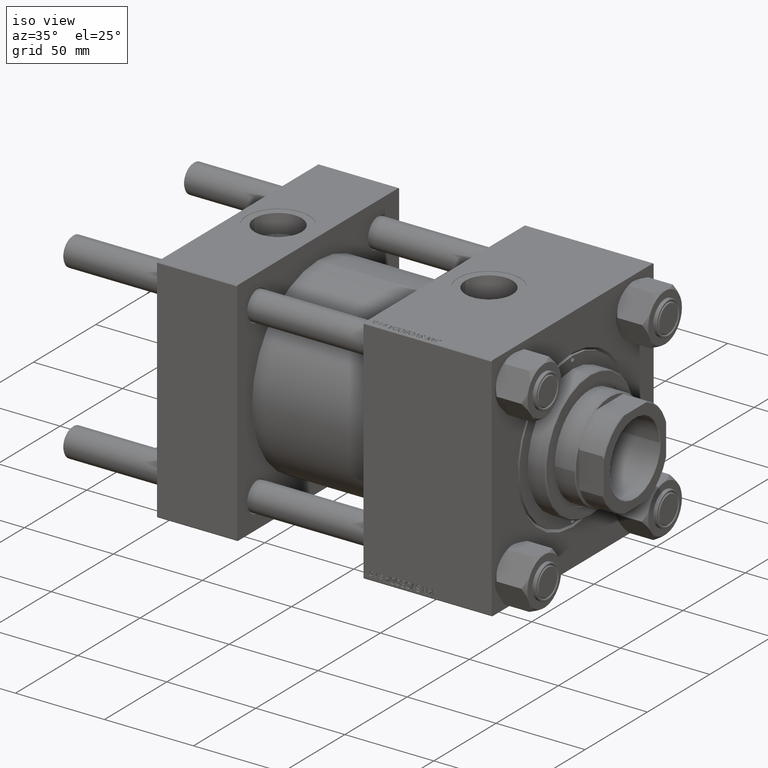
[diagram: clean part render]
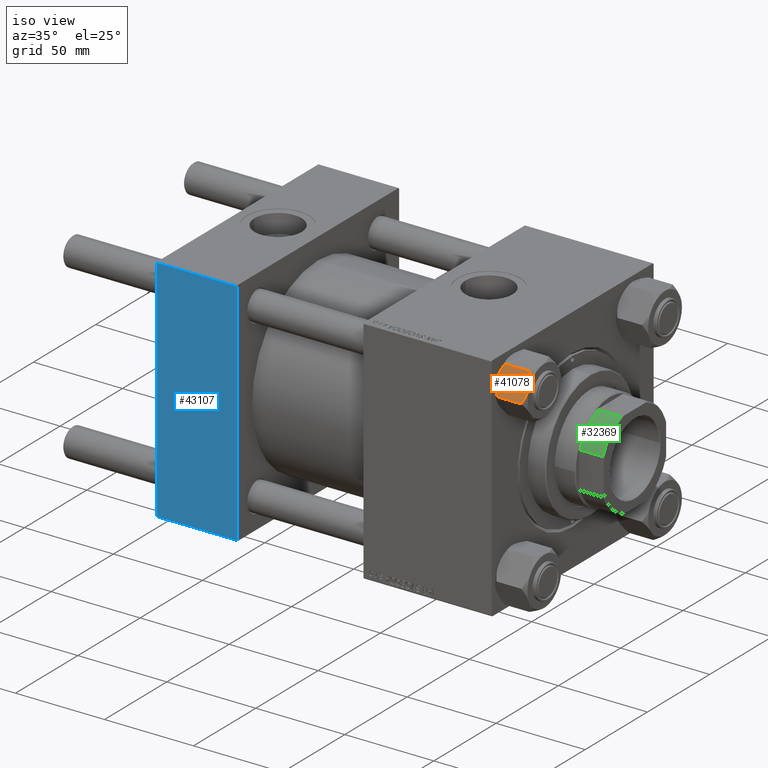
[diagram: same view with three faces highlighted in distinct colors, each labeled with its STEP entity id]
A machine part, iso view with three faces highlighted in distinct colors.
Their STEP definitions:

[orange] entity #41078 — the highlighted planar face has unit normal (-0, 0.9104, -0.4137).
#724 = CARTESIAN_POINT ( 'NONE',  ( -4.506943796211480446E-15, 13.52731680711293905, 0.000000000000000000 ) ) ;
#861 = ORIENTED_EDGE ( 'NONE', *, *, #16307, .F. ) ;
#1007 = VECTOR ( 'NONE', #46820, 1000.000000000000000 ) ;
#1918 = CARTESIAN_POINT ( 'NONE',  ( -7.810000000000002274, 13.52731680711293549, -16.00000000000000000 ) ) ;
#2775 = CARTESIAN_POINT ( 'NONE',  ( 5.184073258379390481, 13.52731680711294082, -17.05185620934991064 ) ) ;
#3809 = ORIENTED_EDGE ( 'NONE', *, *, #49305, .F. ) ;
#4373 = EDGE_CURVE ( 'NONE', #48094, #45149, #8052, .T. ) ;
#5595 = CARTESIAN_POINT ( 'NONE',  ( 0.6693083573771140271, 13.52731680711293905, -17.98750666918891739 ) ) ;
#5730 = CARTESIAN_POINT ( 'NONE',  ( -7.030888348548057998, 13.52731680711293727, -16.29066211644969897 ) ) ;
#5844 = CARTESIAN_POINT ( 'NONE',  ( 4.557734399832405359, 13.52731680711293905, -17.26585298258848411 ) ) ;
#6463 = ORIENTED_EDGE ( 'NONE', *, *, #41936, .F. ) ;
#6665 = DIRECTION ( 'NONE',  ( -0.000000000000000000, -0.000000000000000000, 1.000000000000000000 ) ) ;
#8052 = LINE ( 'NONE', #24106, #1007 ) ;
#8248 = CARTESIAN_POINT ( 'NONE',  ( 7.809999999999994280, 13.52731680711294082, -16.00000000000000000 ) ) ;
#9209 = LINE ( 'NONE', #24768, #16541 ) ;
#9407 = VERTEX_POINT ( 'NONE', #30693 ) ;
#9640 = DIRECTION ( 'NONE',  ( 1.000000000000000000, 3.331735229148797044E-16, 0.000000000000000000 ) ) ;
#9854 = VERTEX_POINT ( 'NONE', #13511 ) ;
#9893 = FACE_OUTER_BOUND ( 'NONE', #38429, .T. ) ;
#10231 = LINE ( 'NONE', #45176, #41820 ) ;
#10459 = VERTEX_POINT ( 'NONE', #33250 ) ;
#10983 = DIRECTION ( 'NONE',  ( -0.000000000000000000, -0.000000000000000000, 1.000000000000000000 ) ) ;
#11621 = CARTESIAN_POINT ( 'NONE',  ( 7.622943475354630571, 13.52731680711294082, -16.00000000000000000 ) ) ;
#11777 = CARTESIAN_POINT ( 'NONE',  ( -7.810000000000002274, 13.52731680711293549, -16.00000000000000000 ) ) ;
#11805 = B_SPLINE_CURVE_WITH_KNOTS ( 'NONE', 3,
 ( #15865, #26842, #46993, #26337, #35016, #46481, #46224, #38834 ),
 .UNSPECIFIED., .F., .F.,
 ( 4, 2, 2, 4 ),
 ( 0.01980594295952729789, 0.02179054093496183772, 0.02377513891039637756, 0.02774433486126545376 ),
 .UNSPECIFIED. ) ;
#11901 = EDGE_CURVE ( 'NONE', #45149, #48420, #34209, .T. ) ;
#13491 = EDGE_CURVE ( 'NONE', #9854, #23813, #11805, .T. ) ;
#13511 = CARTESIAN_POINT ( 'NONE',  ( 7.622943475354630571, 13.52731680711294082, -2.000000000000000000 ) ) ;
#13702 = CARTESIAN_POINT ( 'NONE',  ( -4.557734399832410688, 13.52731680711293549, -0.7341470174115168890 ) ) ;
#14363 = ORIENTED_EDGE ( 'NONE', *, *, #4373, .F. ) ;
#14864 = EDGE_CURVE ( 'NONE', #9407, #48094, #24982, .T. ) ;
#15286 = VERTEX_POINT ( 'NONE', #25603 ) ;
#15588 = ORIENTED_EDGE ( 'NONE', *, *, #25076, .F. ) ;
#15670 = ORIENTED_EDGE ( 'NONE', *, *, #43267, .T. ) ;
#15865 = CARTESIAN_POINT ( 'NONE',  ( 7.622943475354630571, 13.52731680711294082, -2.000000000000000000 ) ) ;
#16307 = EDGE_CURVE ( 'NONE', #23813, #19358, #29221, .T. ) ;
#16541 = VECTOR ( 'NONE', #33194, 1000.000000000000000 ) ;
#16946 = CARTESIAN_POINT ( 'NONE',  ( -5.189513245496327976, 13.52731680711293905, -17.04988915682674389 ) ) ;
#16960 = DIRECTION ( 'NONE',  ( 1.000000000000000000, 3.331735229148797044E-16, 0.000000000000000000 ) ) ;
#17810 = CARTESIAN_POINT ( 'NONE',  ( 1.663410456966166295, 13.52731680711293905, -17.90195050864300086 ) ) ;
#18019 = CARTESIAN_POINT ( 'NONE',  ( -5.184073258379398474, 13.52731680711293372, -0.9481437906500842505 ) ) ;
#19041 = VERTEX_POINT ( 'NONE', #11777 ) ;
#19358 = VERTEX_POINT ( 'NONE', #40012 ) ;
#20424 = ORIENTED_EDGE ( 'NONE', *, *, #14864, .F. ) ;
#20593 = CARTESIAN_POINT ( 'NONE',  ( -0.6693083573771245742, 13.52731680711293727, -0.01249333081108506931 ) ) ;
#20777 = CARTESIAN_POINT ( 'NONE',  ( -6.427364677720469821, 13.52731680711293549, -16.56149306284486400 ) ) ;
#20852 = CARTESIAN_POINT ( 'NONE',  ( -1.333889873825136130, 13.52731680711293549, -0.06156641003439738274 ) ) ;
#21028 = CARTESIAN_POINT ( 'NONE',  ( -1.335584685993417065, 13.52731680711293549, -17.99999999999999289 ) ) ;
#21098 = CARTESIAN_POINT ( 'NONE',  ( -1.663410456966178064, 13.52731680711294082, -0.09804949135699474183 ) ) ;
#21874 = CARTESIAN_POINT ( 'NONE',  ( -7.810000000000002274, 13.52731680711293549, -18.00000000000000000 ) ) ;
#21923 = VECTOR ( 'NONE', #26988, 1000.000000000000000 ) ;
#22105 = CARTESIAN_POINT ( 'NONE',  ( -7.030203932307578896, 13.52731680711293727, -1.709001877891394239 ) ) ;
#22147 = CARTESIAN_POINT ( 'NONE',  ( -4.506943796211480446E-15, 13.52731680711293905, -18.00000000000000000 ) ) ;
#23813 = VERTEX_POINT ( 'NONE', #28770 ) ;
#24106 = CARTESIAN_POINT ( 'NONE',  ( -7.810000000000002274, 13.52731680711293549, -16.00000000000000000 ) ) ;
#24768 = CARTESIAN_POINT ( 'NONE',  ( -7.810000000000002274, 13.52731680711293549, -1.999999999999998224 ) ) ;
#24855 = CARTESIAN_POINT ( 'NONE',  ( -4.553769687922305742, 13.52731680711293727, -17.26727080048547691 ) ) ;
#24982 = B_SPLINE_CURVE_WITH_KNOTS ( 'NONE', 3,
 ( #22147, #32880, #5595, #37214, #17810, #37706, #29053, #5844, #2775, #48434, #33387, #48937 ),
 .UNSPECIFIED., .F., .F.,
 ( 4, 2, 2, 2, 2, 4 ),
 ( 0.02774433486126545029, 0.02873404020403548531, 0.02972374554680552380, 0.03170315623234559732, 0.03368256691788566737, 0.03566197760342574435 ),
 .UNSPECIFIED. ) ;
#25076 = EDGE_CURVE ( 'NONE', #48420, #9854, #43306, .T. ) ;
#25570 = ORIENTED_EDGE ( 'NONE', *, *, #13491, .F. ) ;
#25603 = CARTESIAN_POINT ( 'NONE',  ( -7.622943475354639453, 13.52731680711293727, -16.00000000000000000 ) ) ;
#25709 = PLANE ( 'NONE',  #44178 ) ;
#26219 = EDGE_CURVE ( 'NONE', #19041, #15286, #32785, .T. ) ;
#26337 = CARTESIAN_POINT ( 'NONE',  ( 5.189513245496318206, 13.52731680711294260, -0.9501108431732598891 ) ) ;
#26549 = CARTESIAN_POINT ( 'NONE',  ( 7.809999999999995168, 13.52731680711294082, -18.00000000000000000 ) ) ;
#26842 = CARTESIAN_POINT ( 'NONE',  ( 7.030888348548049116, 13.52731680711294260, -1.709337883550296810 ) ) ;
#26988 = DIRECTION ( 'NONE',  ( -1.000000000000000000, -3.331735229148797044E-16, 0.000000000000000000 ) ) ;
#28770 = CARTESIAN_POINT ( 'NONE',  ( -4.506943796211480446E-15, 13.52731680711293905, 0.000000000000000000 ) ) ;
#29053 = CARTESIAN_POINT ( 'NONE',  ( 3.287826776903146619, 13.52731680711294082, -17.61954155462465366 ) ) ;
#29221 = B_SPLINE_CURVE_WITH_KNOTS ( 'NONE', 3,
 ( #724, #47641, #20593, #20852, #21098, #36656, #47145, #13702, #18019, #37416, #22105, #40742 ),
 .UNSPECIFIED., .F., .F.,
 ( 4, 2, 2, 2, 2, 4 ),
 ( 0.02774433486126545376, 0.02873404020403548878, 0.02972374554680552727, 0.03170315623234559732, 0.03368256691788567431, 0.03566197760342574435 ),
 .UNSPECIFIED. ) ;
#30163 = ORIENTED_EDGE ( 'NONE', *, *, #11901, .F. ) ;
#30693 = CARTESIAN_POINT ( 'NONE',  ( -4.506943796211480446E-15, 13.52731680711293905, -18.00000000000000000 ) ) ;
#32785 = LINE ( 'NONE', #1918, #37435 ) ;
#32880 = CARTESIAN_POINT ( 'NONE',  ( 0.3330234424833778406, 13.52731680711293905, -17.99999999999999645 ) ) ;
#33194 = DIRECTION ( 'NONE',  ( -1.000000000000000000, -3.331735229148797044E-16, 0.000000000000000000 ) ) ;
#33250 = CARTESIAN_POINT ( 'NONE',  ( -7.810000000000002274, 13.52731680711293549, -1.999999999999998224 ) ) ;
#33387 = CARTESIAN_POINT ( 'NONE',  ( 7.030203932307570902, 13.52731680711294260, -16.29099812210859710 ) ) ;
#34209 = LINE ( 'NONE', #26549, #47720 ) ;
#35016 = CARTESIAN_POINT ( 'NONE',  ( 4.553769687922292420, 13.52731680711293905, -0.7327291995145180925 ) ) ;
#35304 = CARTESIAN_POINT ( 'NONE',  ( 7.809999999999994280, 13.52731680711294082, -1.999999999999998224 ) ) ;
#36341 = CARTESIAN_POINT ( 'NONE',  ( -7.622943475354639453, 13.52731680711293727, -16.00000000000000000 ) ) ;
#36586 = CARTESIAN_POINT ( 'NONE',  ( -4.506943796211480446E-15, 13.52731680711293905, -18.00000000000000000 ) ) ;
#36656 = CARTESIAN_POINT ( 'NONE',  ( -2.644243758052992721, 13.52731680711293549, -0.2408281198024026237 ) ) ;
#37092 = CARTESIAN_POINT ( 'NONE',  ( -2.638177715023108494, 13.52731680711293549, -17.79984593233010770 ) ) ;
#37214 = CARTESIAN_POINT ( 'NONE',  ( 1.333889873825125472, 13.52731680711293727, -17.93843358996559800 ) ) ;
#37416 = CARTESIAN_POINT ( 'NONE',  ( -6.422751913021819803, 13.52731680711293905, -1.436509110925896504 ) ) ;
#37435 = VECTOR ( 'NONE', #16960, 1000.000000000000000 ) ;
#37706 = CARTESIAN_POINT ( 'NONE',  ( 2.644243758052981175, 13.52731680711294260, -17.75917188019758797 ) ) ;
#38401 = B_SPLINE_CURVE_WITH_KNOTS ( 'NONE', 3,
 ( #36341, #5730, #20777, #16946, #24855, #37092, #21028, #36586 ),
 .UNSPECIFIED., .F., .F.,
 ( 4, 2, 2, 4 ),
 ( 0.01980594295952729442, 0.02179054093496183425, 0.02377513891039637409, 0.02774433486126545029 ),
 .UNSPECIFIED. ) ;
#38429 = EDGE_LOOP ( 'NONE', ( #43678, #15670, #6463, #861, #25570, #15588, #30163, #14363, #20424, #3809 ) ) ;
#38834 = CARTESIAN_POINT ( 'NONE',  ( -4.506943796211480446E-15, 13.52731680711293905, 0.000000000000000000 ) ) ;
#40012 = CARTESIAN_POINT ( 'NONE',  ( -7.622943475354639453, 13.52731680711293727, -2.000000000000000000 ) ) ;
#40742 = CARTESIAN_POINT ( 'NONE',  ( -7.622943475354639453, 13.52731680711293727, -2.000000000000000000 ) ) ;
#41078 = ADVANCED_FACE ( 'NONE', ( #9893 ), #25709, .F. ) ;
#41820 = VECTOR ( 'NONE', #6665, 1000.000000000000000 ) ;
#41936 = EDGE_CURVE ( 'NONE', #19358, #10459, #9209, .T. ) ;
#43267 = EDGE_CURVE ( 'NONE', #19041, #10459, #10231, .T. ) ;
#43306 = LINE ( 'NONE', #47637, #21923 ) ;
#43678 = ORIENTED_EDGE ( 'NONE', *, *, #26219, .F. ) ;
#44178 = AXIS2_PLACEMENT_3D ( 'NONE', #21874, #49175, #9640 ) ;
#45149 = VERTEX_POINT ( 'NONE', #8248 ) ;
#45176 = CARTESIAN_POINT ( 'NONE',  ( -7.810000000000002274, 13.52731680711293549, -18.00000000000000000 ) ) ;
#46224 = CARTESIAN_POINT ( 'NONE',  ( 1.335584685993407517, 13.52731680711293905, -4.214835945537398487E-15 ) ) ;
#46481 = CARTESIAN_POINT ( 'NONE',  ( 2.638177715023098724, 13.52731680711293905, -0.2001540676698886079 ) ) ;
#46820 = DIRECTION ( 'NONE',  ( 1.000000000000000000, 3.331735229148797044E-16, 0.000000000000000000 ) ) ;
#46993 = CARTESIAN_POINT ( 'NONE',  ( 6.427364677720460051, 13.52731680711294082, -1.438506937155139553 ) ) ;
#47145 = CARTESIAN_POINT ( 'NONE',  ( -3.287826776903154613, 13.52731680711293549, -0.3804584453753406814 ) ) ;
#47637 = CARTESIAN_POINT ( 'NONE',  ( -7.810000000000002274, 13.52731680711293549, -1.999999999999998224 ) ) ;
#47641 = CARTESIAN_POINT ( 'NONE',  ( -0.3330234424833884432, 13.52731680711294082, -4.372948762358202269E-15 ) ) ;
#47720 = VECTOR ( 'NONE', #10983, 1000.000000000000000 ) ;
#48094 = VERTEX_POINT ( 'NONE', #11621 ) ;
#48420 = VERTEX_POINT ( 'NONE', #35304 ) ;
#48434 = CARTESIAN_POINT ( 'NONE',  ( 6.422751913021809145, 13.52731680711294260, -16.56349088907410660 ) ) ;
#48937 = CARTESIAN_POINT ( 'NONE',  ( 7.622943475354630571, 13.52731680711294082, -16.00000000000000000 ) ) ;
#49175 = DIRECTION ( 'NONE',  ( 3.331735229148797044E-16, -1.000000000000000000, 0.000000000000000000 ) ) ;
#49305 = EDGE_CURVE ( 'NONE', #15286, #9407, #38401, .T. ) ;

[blue] entity #43107 — the highlighted planar face has unit normal (0, 1, 0).
#747 = VERTEX_POINT ( 'NONE', #38808 ) ;
#3607 = ORIENTED_EDGE ( 'NONE', *, *, #40548, .T. ) ;
#5258 = CARTESIAN_POINT ( 'NONE',  ( 45.00000000000000000, -65.00000000000000000, 65.00000000000000000 ) ) ;
#8506 = VECTOR ( 'NONE', #8673, 1000.000000000000000 ) ;
#8641 = VERTEX_POINT ( 'NONE', #38419 ) ;
#8673 = DIRECTION ( 'NONE',  ( 1.000000000000000000, 0.000000000000000000, 0.000000000000000000 ) ) ;
#9665 = EDGE_CURVE ( 'NONE', #40731, #747, #18636, .T. ) ;
#10341 = LINE ( 'NONE', #26394, #27906 ) ;
#11967 = CARTESIAN_POINT ( 'NONE',  ( 45.00000000000000000, -65.00000000000000000, 64.50000000000000000 ) ) ;
#18636 = LINE ( 'NONE', #46950, #8506 ) ;
#19380 = LINE ( 'NONE', #38259, #36239 ) ;
#20812 = FACE_OUTER_BOUND ( 'NONE', #30982, .T. ) ;
#22324 = ORIENTED_EDGE ( 'NONE', *, *, #23075, .T. ) ;
#23075 = EDGE_CURVE ( 'NONE', #34758, #8641, #23183, .T. ) ;
#23183 = LINE ( 'NONE', #11967, #34096 ) ;
#24628 = DIRECTION ( 'NONE',  ( 0.000000000000000000, -0.000000000000000000, 1.000000000000000000 ) ) ;
#24966 = ORIENTED_EDGE ( 'NONE', *, *, #9665, .T. ) ;
#26394 = CARTESIAN_POINT ( 'NONE',  ( 0.000000000000000000, -65.00000000000000000, 65.00000000000000000 ) ) ;
#27906 = VECTOR ( 'NONE', #41465, 1000.000000000000000 ) ;
#30412 = AXIS2_PLACEMENT_3D ( 'NONE', #5258, #48852, #24628 ) ;
#30982 = EDGE_LOOP ( 'NONE', ( #3607, #24966, #45362, #22324 ) ) ;
#31837 = CARTESIAN_POINT ( 'NONE',  ( 45.00000000000000000, -65.00000000000000000, 64.50000000000000000 ) ) ;
#34096 = VECTOR ( 'NONE', #39003, 1000.000000000000000 ) ;
#34758 = VERTEX_POINT ( 'NONE', #31837 ) ;
#36239 = VECTOR ( 'NONE', #49750, 1000.000000000000000 ) ;
#38259 = CARTESIAN_POINT ( 'NONE',  ( 45.00000000000000000, -65.00000000000000000, 65.00000000000000000 ) ) ;
#38419 = CARTESIAN_POINT ( 'NONE',  ( 0.000000000000000000, -65.00000000000000000, 64.50000000000000000 ) ) ;
#38808 = CARTESIAN_POINT ( 'NONE',  ( 45.00000000000000000, -65.00000000000000000, -64.49999999999991473 ) ) ;
#39003 = DIRECTION ( 'NONE',  ( -1.000000000000000000, 0.000000000000000000, 0.000000000000000000 ) ) ;
#40454 = PLANE ( 'NONE',  #30412 ) ;
#40548 = EDGE_CURVE ( 'NONE', #8641, #40731, #10341, .T. ) ;
#40731 = VERTEX_POINT ( 'NONE', #48544 ) ;
#41465 = DIRECTION ( 'NONE',  ( 0.000000000000000000, 0.000000000000000000, -1.000000000000000000 ) ) ;
#43107 = ADVANCED_FACE ( 'NONE', ( #20812 ), #40454, .F. ) ;
#45362 = ORIENTED_EDGE ( 'NONE', *, *, #46711, .F. ) ;
#46711 = EDGE_CURVE ( 'NONE', #34758, #747, #19380, .T. ) ;
#46950 = CARTESIAN_POINT ( 'NONE',  ( 45.00000000000000000, -65.00000000000000000, -64.49999999999991473 ) ) ;
#48544 = CARTESIAN_POINT ( 'NONE',  ( 0.000000000000000000, -65.00000000000000000, -64.49999999999991473 ) ) ;
#48852 = DIRECTION ( 'NONE',  ( -0.000000000000000000, 1.000000000000000000, 0.000000000000000000 ) ) ;
#49750 = DIRECTION ( 'NONE',  ( 0.000000000000000000, 0.000000000000000000, -1.000000000000000000 ) ) ;

[green] entity #32369 — the highlighted cylindrical surface (partial cylindrical patch) has radius 27 mm, axis along (1, 0, -0).
#1284 = EDGE_CURVE ( 'NONE', #5634, #49004, #19646, .T. ) ;
#3474 = VERTEX_POINT ( 'NONE', #6227 ) ;
#3812 = EDGE_LOOP ( 'NONE', ( #20124, #6076, #39001, #47243 ) ) ;
#4142 = AXIS2_PLACEMENT_3D ( 'NONE', #12334, #31489, #12087 ) ;
#4904 = AXIS2_PLACEMENT_3D ( 'NONE', #11401, #46869, #22890 ) ;
#5081 = VECTOR ( 'NONE', #27343, 1000.000000000000000 ) ;
#5098 = DIRECTION ( 'NONE',  ( -0.000000000000000000, -0.000000000000000000, 1.000000000000000000 ) ) ;
#5634 = VERTEX_POINT ( 'NONE', #8265 ) ;
#6076 = ORIENTED_EDGE ( 'NONE', *, *, #1284, .T. ) ;
#6227 = CARTESIAN_POINT ( 'NONE',  ( 24.99999999999999645, -10.19803902718556188, 164.5000000000000000 ) ) ;
#7329 = CYLINDRICAL_SURFACE ( 'NONE', #4904, 26.99999999999999645 ) ;
#7409 = CARTESIAN_POINT ( 'NONE',  ( 10.19803902718555655, -25.00000000000000000, 177.5000000000000284 ) ) ;
#8265 = CARTESIAN_POINT ( 'NONE',  ( 24.99999999999999645, -10.19803902718556188, 177.5000000000000284 ) ) ;
#11401 = CARTESIAN_POINT ( 'NONE',  ( 0.000000000000000000, 0.000000000000000000, -0.001000000000001000089 ) ) ;
#12087 = DIRECTION ( 'NONE',  ( 1.000000000000000000, 0.000000000000000000, 0.000000000000000000 ) ) ;
#12334 = CARTESIAN_POINT ( 'NONE',  ( 0.000000000000000000, 0.000000000000000000, 177.5000000000000284 ) ) ;
#14324 = CARTESIAN_POINT ( 'NONE',  ( 0.000000000000000000, 0.000000000000000000, 164.5000000000000000 ) ) ;
#15472 = VECTOR ( 'NONE', #5098, 1000.000000000000000 ) ;
#17316 = LINE ( 'NONE', #44864, #15472 ) ;
#19646 = CIRCLE ( 'NONE', #4142, 26.99999999999999645 ) ;
#20124 = ORIENTED_EDGE ( 'NONE', *, *, #40831, .T. ) ;
#22890 = DIRECTION ( 'NONE',  ( 1.000000000000000000, 0.000000000000000000, 0.000000000000000000 ) ) ;
#23399 = FACE_OUTER_BOUND ( 'NONE', #3812, .T. ) ;
#27343 = DIRECTION ( 'NONE',  ( -0.000000000000000000, -0.000000000000000000, 1.000000000000000000 ) ) ;
#27384 = EDGE_CURVE ( 'NONE', #42318, #49004, #17316, .T. ) ;
#29366 = DIRECTION ( 'NONE',  ( -0.000000000000000000, -0.000000000000000000, 1.000000000000000000 ) ) ;
#29882 = DIRECTION ( 'NONE',  ( -1.000000000000000000, 8.881784197001252323E-16, 0.000000000000000000 ) ) ;
#30917 = LINE ( 'NONE', #31182, #5081 ) ;
#31182 = CARTESIAN_POINT ( 'NONE',  ( 24.99999999999999645, -10.19803902718556188, -0.001000000000001000089 ) ) ;
#31489 = DIRECTION ( 'NONE',  ( -0.000000000000000000, -0.000000000000000000, -1.000000000000000000 ) ) ;
#32369 = ADVANCED_FACE ( 'NONE', ( #23399 ), #7329, .T. ) ;
#38652 = CARTESIAN_POINT ( 'NONE',  ( 10.19803902718555655, -25.00000000000000000, 164.5000000000000000 ) ) ;
#39001 = ORIENTED_EDGE ( 'NONE', *, *, #27384, .F. ) ;
#40831 = EDGE_CURVE ( 'NONE', #3474, #5634, #30917, .T. ) ;
#42318 = VERTEX_POINT ( 'NONE', #38652 ) ;
#43563 = CIRCLE ( 'NONE', #47647, 26.99999999999999645 ) ;
#44864 = CARTESIAN_POINT ( 'NONE',  ( 10.19803902718555655, -25.00000000000000000, -0.001000000000001000089 ) ) ;
#46869 = DIRECTION ( 'NONE',  ( -0.000000000000000000, -0.000000000000000000, 1.000000000000000000 ) ) ;
#47243 = ORIENTED_EDGE ( 'NONE', *, *, #47405, .T. ) ;
#47405 = EDGE_CURVE ( 'NONE', #42318, #3474, #43563, .T. ) ;
#47647 = AXIS2_PLACEMENT_3D ( 'NONE', #14324, #29366, #29882 ) ;
#49004 = VERTEX_POINT ( 'NONE', #7409 ) ;